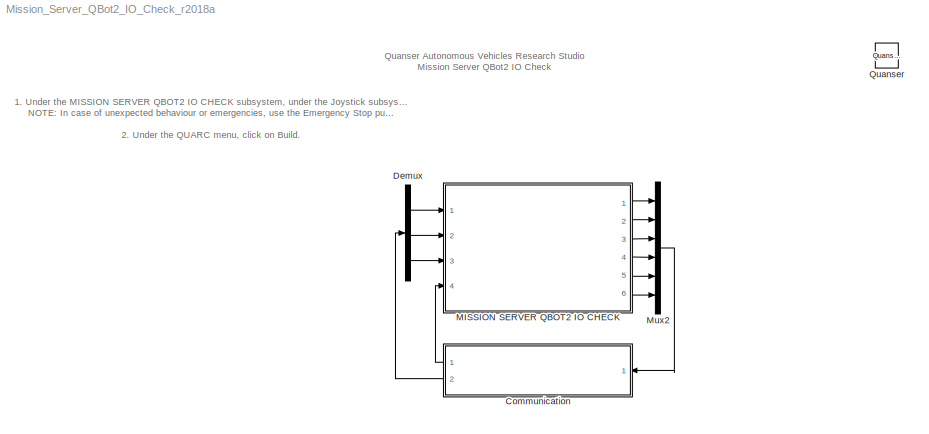
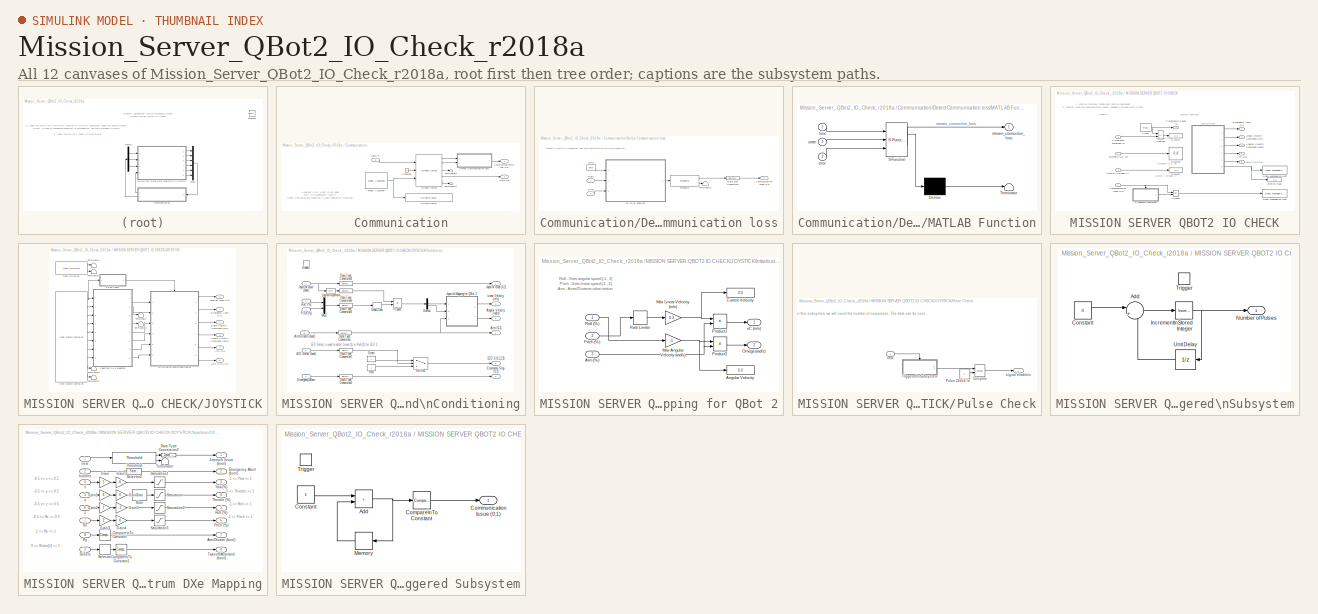
[diagram: thumbnail index - all 12 canvases of the model, root first then tree order]
MODEL Mission_Server_QBot2_IO_Check_r2018a
KIND model
BLOCK [SubSystem] Communication
  Ports = [1, 2]
  RequestExecContextInheritance = off
  SID = 4439
BLOCK [Outport] Communication/Communication\nIssue (0,1)
  SID = 4441
  VectorParamsAs1DForOutWhenUnconnected = off
BLOCK [Constant] Communication/Constant
  SID = 4314
BLOCK [Inport] Communication/Data In
  SID = 4440
BLOCK [Outport] Communication/Data Out
  Port = 2
  SID = 4444
  VectorParamsAs1DForOutWhenUnconnected = off
BLOCK [SubSystem] Communication/Detect Communication loss
  Ports = [2, 1]
  RequestExecContextInheritance = off
  SID = 4446
BLOCK [Outport] Communication/Detect Communication loss/Communication Issue (0,1)
  SID = 4454
  VectorParamsAs1DForOutWhenUnconnected = off
BLOCK [DataTypeConversion] Communication/Detect Communication loss/Data Type Conversion
  RndMeth = Floor
  SID = 4450
  SaturateOnIntegerOverflow = off
BLOCK [Inport] Communication/Detect Communication loss/Error
  Port = 2
  SID = 4448
BLOCK [SubSystem] Communication/Detect Communication loss/MATLAB Function
  ErrorFcn = Stateflow.Translate.translate
  PermitHierarchicalResolution = ExplicitOnly
  Ports = [3, 1]
  RequestExecContextInheritance = off
  SFBlockType = MATLAB Function
  SID = 4451
  TreatAsAtomicUnit = on
BLOCK [Demux] Communication/Detect Communication loss/MATLAB Function/ Demux 
  Outputs = 1
  Ports = [1, 1]
  SID = 4451::38
BLOCK [S-Function] Communication/Detect Communication loss/MATLAB Function/ SFunction 
  EnableBusSupport = off
  FunctionName = sf_sfun
  PortCounts = [3 2]
  Ports = [3, 2]
  SFcnIsStateOwnerBlock = off
  SFunctionDeploymentMode = off
  SID = 4451::37
  Tag = Stateflow S-Function Mission_Server_QBot2_IO_Check_r2018a 3
BLOCK [Terminator] Communication/Detect Communication loss/MATLAB Function/ Terminator 
  SID = 4451::39
BLOCK [Inport] Communication/Detect Communication loss/MATLAB Function/error
  Port = 3
  SID = 4451::23
BLOCK [Inport] Communication/Detect Communication loss/MATLAB Function/state
  Port = 2
  SID = 4451::22
BLOCK [Outport] Communication/Detect Communication loss/MATLAB Function/stream_connection_loss
  SID = 4451::5
  VectorParamsAs1DForOutWhenUnconnected = off
BLOCK [Inport] Communication/Detect Communication loss/MATLAB Function/time
  SID = 4451::1
BLOCK [Inport] Communication/Detect Communication loss/State
  SID = 4447
BLOCK [Terminator] Communication/Detect Communication loss/Terminator2
  SID = 4452
BLOCK [Reference] Communication/Detect Communication loss/Threshold  REF=quarc_library/Discontinuities/Threshold
  Ports = [1, 2]
  RTWMemSecDataConstants = Inherit from model
  RTWMemSecDataInternal = Inherit from model
  RTWMemSecDataParameters = Inherit from model
  RTWMemSecFuncExecute = Inherit from model
  RTWMemSecFuncInitTerm = Inherit from model
  SID = 4453
  SourceBlock = quarc_library/Discontinuities/Threshold
  SourceProductName = QUARC Targets
  SourceType = Threshold
  duration = 0.1
  operator = >=
  param_src = Specify via dialog
  threshold = 0.5
BLOCK [Reference] Communication/Detect Communication loss/Time  REF=quarc_library/Sources/Time/Time
  MultiThreadCoSim = auto
  Ports = [0, 1]
  SID = 4455
  SourceBlock = quarc_library/Sources/Time/Time
  SourceProductName = QUARC Targets
  SourceType = Time
  sample_time = qc_get_step_size
  time_source = Wall clock
BLOCK [Reference] Communication/Model Argument  REF=quarc_library/Sources/Signals/Model Argument
  AttributesFormatString = (-%<argument_name>)
  MultiThreadCoSim = auto
  Ports = [0, 1]
  SID = 4322
  SourceBlock = quarc_library/Sources/Signals/Model Argument
  SourceProductName = QUARC Targets
  SourceType = Model Argument
  argument_name = URI_Host
  data_type = char
  data_type_mode = Specify via dialog
  default_value = 0
  has_value = on
  max_length = 80
  variable_size = off
BLOCK [Reference] Communication/Stream Server  REF=quarc_library/Communications/Basic/Stream Server
  MultiThreadCoSim = auto
  Ports = [3, 5]
  SID = 4331
  SourceBlock = quarc_library/Communications/Basic/Stream Server
  SourceProductName = QUARC Targets
  SourceType = Stream Server
  active = off
  apply_uri_to_all_configs = off
  byte_order = little endian (Intel - LSB first)
  data_type = Inherited via back propagation
  default_value = zeros(1,5)
  implementation = Use blocking I/O in a separate thread
  max_dimensions = -1
  optimization = Minimum latency
  receive_buffer_size = 1460
  receive_dimensions = off
  receive_fifo_size = 1
  receive_options = Receive most recent data
  receive_priority = 0
  sample_time = qc_get_step_size
  send_buffer_size = 1460
  send_dimensions = off
  send_fifo_size = 1
  send_options = Send most recent data
  send_priority = 0
  type_expr = BusObject
  uri = tcpip://localhost:18666
  uri_source = External input port
BLOCK [Reference] Communication/String Display   REF=quarc_library/Strings/String Display
  MultiThreadCoSim = auto
  Ports = [1]
  SID = 4332
  SourceBlock = quarc_library/Strings/String Display
  SourceProductName = QUARC Targets
  SourceType = String Display
  alignment = center
  display_mode = Single line
  sample_time = -1
  use_new = off
BLOCK [Terminator] Communication/Terminator1
  SID = 4334
BLOCK [Terminator] Communication/Terminator2
  SID = 4335
BLOCK [Demux] Demux
  Outputs = [3 1 1 ]
  Ports = [1, 3]
  SID = 4456
BLOCK [SubSystem] MISSION SERVER QBOT2 IO CHECK
  Ports = [4, 6]
  RequestExecContextInheritance = off
  SID = 4500
BLOCK [Outport] MISSION SERVER QBOT2 IO CHECK/Angular Velocity Command (rad//s)
  Port = 3
  SID = 4512
  VectorParamsAs1DForOutWhenUnconnected = off
BLOCK [Outport] MISSION SERVER QBOT2 IO CHECK/Arm (0,1)
  Port = 4
  SID = 4513
  VectorParamsAs1DForOutWhenUnconnected = off
BLOCK [Inport] MISSION SERVER QBOT2 IO CHECK/Battery Voltage (V)
  Port = 2
  SID = 4503
BLOCK [Inport] MISSION SERVER QBOT2 IO CHECK/Bumpers (0,1) [3]
  SID = 4502
BLOCK [Inport] MISSION SERVER QBOT2 IO CHECK/Communication Issue (0,1)
  Port = 4
  SID = 4504
BLOCK [Display] MISSION SERVER QBOT2 IO CHECK/Display1
  Decimation = 1
  Ports = [1]
  SID = 3830
BLOCK [Display] MISSION SERVER QBOT2 IO CHECK/Display2
  Decimation = 1
  Ports = [1]
  SID = 3831
BLOCK [Display] MISSION SERVER QBOT2 IO CHECK/Display3
  Decimation = 1
  Ports = [1]
  SID = 4386
BLOCK [Outport] MISSION SERVER QBOT2 IO CHECK/Emergency Abort (0,1)
  SID = 4505
  VectorParamsAs1DForOutWhenUnconnected = off
BLOCK [SubSystem] MISSION SERVER QBOT2 IO CHECK/JOYSTICK
  Ports = [0, 6]
  RequestExecContextInheritance = off
  SID = 3641
BLOCK [Outport] MISSION SERVER QBOT2 IO CHECK/JOYSTICK/Angular Velocity Command (rad//s)
  Port = 3
  SID = 4496
  VectorParamsAs1DForOutWhenUnconnected = off
BLOCK [Outport] MISSION SERVER QBOT2 IO CHECK/JOYSTICK/Arm (0,1)
  Port = 4
  SID = 4497
  VectorParamsAs1DForOutWhenUnconnected = off
BLOCK [Outport] MISSION SERVER QBOT2 IO CHECK/JOYSTICK/Emergency Abort (0,1)
  SID = 4378
  VectorParamsAs1DForOutWhenUnconnected = off
BLOCK [Reference] MISSION SERVER QBOT2 IO CHECK/JOYSTICK/Host Game Controller  REF=quarc_library/Devices/Peripherals/Host/Host Game Controller
  MultiThreadCoSim = auto
  Ports = [0, 10]
  SID = 3674
  SourceBlock = quarc_library/Devices/Peripherals/Host/Host Game Controller
  SourceProductName = QUARC Targets
  SourceType = Host Game Controller
  auto_center = off
  buffer_size = 20
  controller = 1
  deadzone = []
  debug_mode = off
  enabled = on
  object_name = Host-1
  sample_time = qc_get_step_size
  saturation = []
BLOCK [Reference] MISSION SERVER QBOT2 IO CHECK/JOYSTICK/Host Initialize  REF=quarc_library/Devices/Peripherals/Host/Host Initialize
  MultiThreadCoSim = auto
  Ports = [0, 2]
  SID = 3675
  SourceBlock = quarc_library/Devices/Peripherals/Host/Host Initialize
  SourceProductName = QUARC Targets
  SourceType = Host Initialize
  active = on
  apply_uri_to_all_configs = on
  object_name = Host-1
  receive_buffer_size = 1000
  run_client = on
  sample_time = qc_get_step_size
  send_buffer_size = 1000
  thread_priority = 0
  uri = tcpip://localhost:18001
  uri_source = Use external mode communications
  use_window = off
  window_position = []
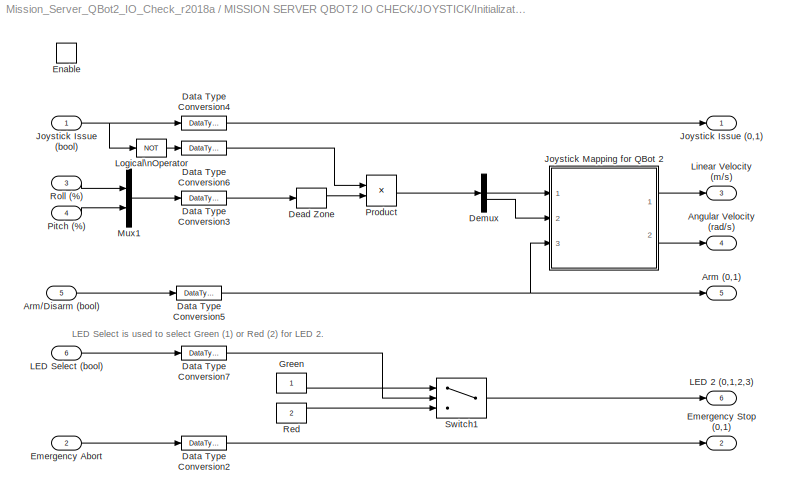
BLOCK [SubSystem] MISSION SERVER QBOT2 IO CHECK/JOYSTICK/Initialization and\nConditioning
  Ports = [6, 6, 1]
  RequestExecContextInheritance = off
  SID = 3648
  TreatAsAtomicUnit = on
BLOCK [Outport] MISSION SERVER QBOT2 IO CHECK/JOYSTICK/Initialization and\nConditioning/Angular Velocity (rad//s)
  InitialOutput = 0
  Port = 4
  SID = 4491
  VectorParamsAs1DForOutWhenUnconnected = off
BLOCK [Outport] MISSION SERVER QBOT2 IO CHECK/JOYSTICK/Initialization and\nConditioning/Arm (0,1) 
  InitialOutput = 0
  Port = 5
  SID = 4492
  VectorParamsAs1DForOutWhenUnconnected = off
BLOCK [Inport] MISSION SERVER QBOT2 IO CHECK/JOYSTICK/Initialization and\nConditioning/Arm//Disarm (bool)
  Port = 5
  SID = 3655
BLOCK [DataTypeConversion] MISSION SERVER QBOT2 IO CHECK/JOYSTICK/Initialization and\nConditioning/Data Type Conversion2
  RndMeth = Floor
  SID = 3658
  SaturateOnIntegerOverflow = off
BLOCK [DataTypeConversion] MISSION SERVER QBOT2 IO CHECK/JOYSTICK/Initialization and\nConditioning/Data Type Conversion3
  RndMeth = Floor
  SID = 3659
  SaturateOnIntegerOverflow = off
BLOCK [DataTypeConversion] MISSION SERVER QBOT2 IO CHECK/JOYSTICK/Initialization and\nConditioning/Data Type Conversion4
  RndMeth = Floor
  SID = 3660
  SaturateOnIntegerOverflow = off
BLOCK [DataTypeConversion] MISSION SERVER QBOT2 IO CHECK/JOYSTICK/Initialization and\nConditioning/Data Type Conversion5
  RndMeth = Floor
  SID = 3661
  SaturateOnIntegerOverflow = off
BLOCK [DataTypeConversion] MISSION SERVER QBOT2 IO CHECK/JOYSTICK/Initialization and\nConditioning/Data Type Conversion6
  RndMeth = Floor
  SID = 3662
  SaturateOnIntegerOverflow = off
BLOCK [DataTypeConversion] MISSION SERVER QBOT2 IO CHECK/JOYSTICK/Initialization and\nConditioning/Data Type Conversion7
  RndMeth = Floor
  SID = 3728
  SaturateOnIntegerOverflow = off
BLOCK [DeadZone] MISSION SERVER QBOT2 IO CHECK/JOYSTICK/Initialization and\nConditioning/Dead Zone
  LowerValue = -0.01
  SID = 3663
  UpperValue = 0.01
BLOCK [Demux] MISSION SERVER QBOT2 IO CHECK/JOYSTICK/Initialization and\nConditioning/Demux
  Outputs = 2
  Ports = [1, 2]
  SID = 4360
BLOCK [Inport] MISSION SERVER QBOT2 IO CHECK/JOYSTICK/Initialization and\nConditioning/Emergency Abort
  Port = 2
  SID = 3650
BLOCK [Outport] MISSION SERVER QBOT2 IO CHECK/JOYSTICK/Initialization and\nConditioning/Emergency Stop  (0,1) 
  InitialOutput = 0
  Port = 2
  SID = 4489
  VectorParamsAs1DForOutWhenUnconnected = off
BLOCK [EnablePort] MISSION SERVER QBOT2 IO CHECK/JOYSTICK/Initialization and\nConditioning/Enable
  Ports = []
  SID = 3656
  StatesWhenEnabling = reset
BLOCK [Constant] MISSION SERVER QBOT2 IO CHECK/JOYSTICK/Initialization and\nConditioning/Green
  SID = 4516
BLOCK [Outport] MISSION SERVER QBOT2 IO CHECK/JOYSTICK/Initialization and\nConditioning/Joystick Issue (0,1)
  InitialOutput = 0
  SID = 3672
  VectorParamsAs1DForOutWhenUnconnected = off
BLOCK [Inport] MISSION SERVER QBOT2 IO CHECK/JOYSTICK/Initialization and\nConditioning/Joystick Issue (bool)
  SID = 3649
BLOCK [SubSystem] MISSION SERVER QBOT2 IO CHECK/JOYSTICK/Initialization and\nConditioning/Joystick Mapping for QBot 2
  Ports = [3, 2]
  RequestExecContextInheritance = off
  SID = 4345
BLOCK [Display] MISSION SERVER QBOT2 IO CHECK/JOYSTICK/Initialization and\nConditioning/Joystick Mapping for QBot 2/Angular Velocity
  Decimation = 1
  Ports = [1]
  SID = 4349
BLOCK [Inport] MISSION SERVER QBOT2 IO CHECK/JOYSTICK/Initialization and\nConditioning/Joystick Mapping for QBot 2/Arm (%)
  Port = 3
  SID = 4348
BLOCK [Display] MISSION SERVER QBOT2 IO CHECK/JOYSTICK/Initialization and\nConditioning/Joystick Mapping for QBot 2/Current Velocity
  Decimation = 1
  Ports = [1]
  SID = 4350
BLOCK [Gain] MISSION SERVER QBOT2 IO CHECK/JOYSTICK/Initialization and\nConditioning/Joystick Mapping for QBot 2/Max Angular Velocity (rad//s)
  Gain = -1
  SID = 4352
BLOCK [Gain] MISSION SERVER QBOT2 IO CHECK/JOYSTICK/Initialization and\nConditioning/Joystick Mapping for QBot 2/Max Linear Velocity (m//s)
  Gain = 0.3
  SID = 4351
BLOCK [Outport] MISSION SERVER QBOT2 IO CHECK/JOYSTICK/Initialization and\nConditioning/Joystick Mapping for QBot 2/Omega (rad//s)
  Port = 2
  SID = 4357
  VectorParamsAs1DForOutWhenUnconnected = off
BLOCK [Inport] MISSION SERVER QBOT2 IO CHECK/JOYSTICK/Initialization and\nConditioning/Joystick Mapping for QBot 2/Pitch (%)
  Port = 2
  SID = 4347
BLOCK [Product] MISSION SERVER QBOT2 IO CHECK/JOYSTICK/Initialization and\nConditioning/Joystick Mapping for QBot 2/Product1
  Ports = [2, 1]
  SID = 4353
BLOCK [Product] MISSION SERVER QBOT2 IO CHECK/JOYSTICK/Initialization and\nConditioning/Joystick Mapping for QBot 2/Product2
  Ports = [2, 1]
  SID = 4354
BLOCK [RateLimiter] MISSION SERVER QBOT2 IO CHECK/JOYSTICK/Initialization and\nConditioning/Joystick Mapping for QBot 2/Rate Limiter
  FallingSlewLimit = -2
  RisingSlewLimit = 2
  SID = 4355
  SampleTimeMode = inherited
BLOCK [Inport] MISSION SERVER QBOT2 IO CHECK/JOYSTICK/Initialization and\nConditioning/Joystick Mapping for QBot 2/Roll (%)
  SID = 4346
BLOCK [Outport] MISSION SERVER QBOT2 IO CHECK/JOYSTICK/Initialization and\nConditioning/Joystick Mapping for QBot 2/vC (m//s)
  SID = 4356
  VectorParamsAs1DForOutWhenUnconnected = off
BLOCK [Outport] MISSION SERVER QBOT2 IO CHECK/JOYSTICK/Initialization and\nConditioning/LED 2 (0,1,2,3)
  InitialOutput = 0
  Port = 6
  SID = 4494
  VectorParamsAs1DForOutWhenUnconnected = off
BLOCK [Inport] MISSION SERVER QBOT2 IO CHECK/JOYSTICK/Initialization and\nConditioning/LED Select (bool)
  Port = 6
  SID = 3727
BLOCK [Outport] MISSION SERVER QBOT2 IO CHECK/JOYSTICK/Initialization and\nConditioning/Linear Velocity (m//s)
  InitialOutput = 0
  Port = 3
  SID = 4490
  VectorParamsAs1DForOutWhenUnconnected = off
BLOCK [Logic] MISSION SERVER QBOT2 IO CHECK/JOYSTICK/Initialization and\nConditioning/Logical\nOperator
  AllPortsSameDT = off
  Operator = NOT
  OutDataTypeStr = boolean
  Ports = [1, 1]
  SID = 3664
BLOCK [Mux] MISSION SERVER QBOT2 IO CHECK/JOYSTICK/Initialization and\nConditioning/Mux1
  DisplayOption = bar
  Inputs = 2
  Ports = [2, 1]
  SID = 3666
BLOCK [Inport] MISSION SERVER QBOT2 IO CHECK/JOYSTICK/Initialization and\nConditioning/Pitch (%)
  Port = 4
  SID = 3654
BLOCK [Product] MISSION SERVER QBOT2 IO CHECK/JOYSTICK/Initialization and\nConditioning/Product
  Ports = [2, 1]
  SID = 3667
BLOCK [Constant] MISSION SERVER QBOT2 IO CHECK/JOYSTICK/Initialization and\nConditioning/Red
  SID = 4517
  Value = 2
BLOCK [Inport] MISSION SERVER QBOT2 IO CHECK/JOYSTICK/Initialization and\nConditioning/Roll (%)
  Port = 3
  SID = 3653
BLOCK [Switch] MISSION SERVER QBOT2 IO CHECK/JOYSTICK/Initialization and\nConditioning/Switch1
  Criteria = u2 > Threshold
  InputSameDT = off
  SID = 4438
  SaturateOnIntegerOverflow = off
  Threshold = 0.5
BLOCK [Outport] MISSION SERVER QBOT2 IO CHECK/JOYSTICK/Joystick Issue (0,1)
  Port = 6
  SID = 3722
  VectorParamsAs1DForOutWhenUnconnected = off
BLOCK [Outport] MISSION SERVER QBOT2 IO CHECK/JOYSTICK/LED 2 (0,1,2,3)
  Port = 5
  SID = 4499
  VectorParamsAs1DForOutWhenUnconnected = off
BLOCK [Outport] MISSION SERVER QBOT2 IO CHECK/JOYSTICK/Linear Velocity Command (m//s)
  Port = 2
  SID = 4495
  VectorParamsAs1DForOutWhenUnconnected = off
BLOCK [SubSystem] MISSION SERVER QBOT2 IO CHECK/JOYSTICK/Pulse Check
  Ports = [1, 1]
  RequestExecContextInheritance = off
  SID = 4656
BLOCK [Reference] MISSION SERVER QBOT2 IO CHECK/JOYSTICK/Pulse Check/Compare  REF=quarc_library/Logic Operations/Compare
  MultiThreadCoSim = auto
  Ports = [2, 1]
  SID = 4658
  SourceBlock = quarc_library/Logic Operations/Compare
  SourceProductName = QUARC Targets
  SourceType = Compare
  operator = >
  output_data_type = boolean
BLOCK [Constant] MISSION SERVER QBOT2 IO CHECK/JOYSTICK/Pulse Check/Pulse Check \n
  SID = 4659
  Value = 2
BLOCK [SubSystem] MISSION SERVER QBOT2 IO CHECK/JOYSTICK/Pulse Check/Triggered\nSubsystem
  Ports = [0, 1, 0, 1]
  RequestExecContextInheritance = off
  SID = 4660
  TreatAsAtomicUnit = on
BLOCK [Sum] MISSION SERVER QBOT2 IO CHECK/JOYSTICK/Pulse Check/Triggered\nSubsystem/Add
  Inputs = |++
  Ports = [2, 1]
  SID = 4662
BLOCK [Constant] MISSION SERVER QBOT2 IO CHECK/JOYSTICK/Pulse Check/Triggered\nSubsystem/Constant
  SID = 4663
  Value = 0
BLOCK [Reference] MISSION SERVER QBOT2 IO CHECK/JOYSTICK/Pulse Check/Triggered\nSubsystem/Increment\nStored Integer  REF=simulink/Additional Math\n& Discrete/Additional Math:\nIncrement - Decrement/Increment\nStored Integer
  Ports = [1, 1]
  RTWMemSecDataConstants = Inherit from model
  RTWMemSecDataInternal = Inherit from model
  RTWMemSecDataParameters = Inherit from model
  RTWMemSecFuncExecute = Inherit from model
  RTWMemSecFuncInitTerm = Inherit from model
  SID = 4664
  SourceBlock = simulink/Additional Math\n& Discrete/Additional Math:\nIncrement - Decrement/Increment\nStored Integer
  SourceProductBaseCode = SL
  SourceType = Stored Integer Value Increment
BLOCK [Outport] MISSION SERVER QBOT2 IO CHECK/JOYSTICK/Pulse Check/Triggered\nSubsystem/Number of Pulses
  SID = 4666
  VectorParamsAs1DForOutWhenUnconnected = off
BLOCK [TriggerPort] MISSION SERVER QBOT2 IO CHECK/JOYSTICK/Pulse Check/Triggered\nSubsystem/Trigger
  Ports = []
  SID = 4661
  StatesWhenEnabling = held
  VariantControl = Variant
BLOCK [UnitDelay] MISSION SERVER QBOT2 IO CHECK/JOYSTICK/Pulse Check/Triggered\nSubsystem/Unit Delay
  HasFrameUpgradeWarning = on
  SID = 4665
  SampleTime = -1
BLOCK [Inport] MISSION SERVER QBOT2 IO CHECK/JOYSTICK/Pulse Check/new
  SID = 4657
BLOCK [Outport] MISSION SERVER QBOT2 IO CHECK/JOYSTICK/Pulse Check/signal enable\n
  SID = 4667
  VectorParamsAs1DForOutWhenUnconnected = off
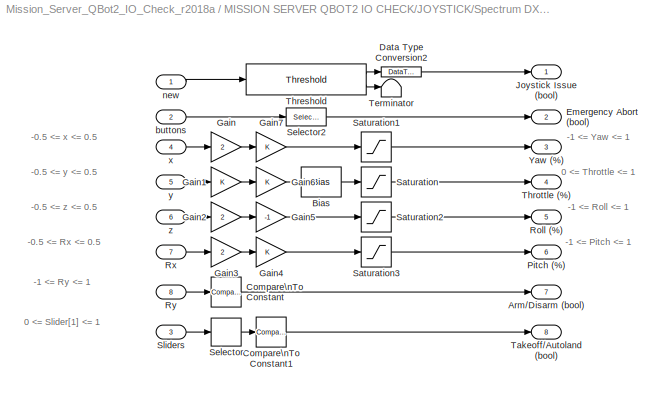
BLOCK [SubSystem] MISSION SERVER QBOT2 IO CHECK/JOYSTICK/Spectrum DXe Mapping
  Ports = [8, 8]
  RequestExecContextInheritance = off
  SID = 4594
BLOCK [Outport] MISSION SERVER QBOT2 IO CHECK/JOYSTICK/Spectrum DXe Mapping/Arm//Disarm (bool) 
  Port = 7
  SID = 4629
  VectorParamsAs1DForOutWhenUnconnected = off
BLOCK [Bias] MISSION SERVER QBOT2 IO CHECK/JOYSTICK/Spectrum DXe Mapping/Bias
  Bias = 0.5
  SID = 4603
  SaturateOnIntegerOverflow = off
BLOCK [Reference] MISSION SERVER QBOT2 IO CHECK/JOYSTICK/Spectrum DXe Mapping/Compare\nTo Constant  REF=simulink/Logic and Bit\nOperations/Compare\nTo Constant
  OutDataTypeStr = boolean
  Ports = [1, 1]
  RTWMemSecDataConstants = Inherit from model
  RTWMemSecDataInternal = Inherit from model
  RTWMemSecDataParameters = Inherit from model
  RTWMemSecFuncExecute = Inherit from model
  RTWMemSecFuncInitTerm = Inherit from model
  SID = 4604
  SourceBlock = simulink/Logic and Bit\nOperations/Compare\nTo Constant
  SourceProductBaseCode = SL
  SourceType = Compare To Constant
  ZeroCross = on
  const = 0
  relop = <=
BLOCK [Reference] MISSION SERVER QBOT2 IO CHECK/JOYSTICK/Spectrum DXe Mapping/Compare\nTo Constant1  REF=simulink/Logic and Bit\nOperations/Compare\nTo Constant
  OutDataTypeStr = boolean
  Ports = [1, 1]
  RTWMemSecDataConstants = Inherit from model
  RTWMemSecDataInternal = Inherit from model
  RTWMemSecDataParameters = Inherit from model
  RTWMemSecFuncExecute = Inherit from model
  RTWMemSecFuncInitTerm = Inherit from model
  SID = 4605
  SourceBlock = simulink/Logic and Bit\nOperations/Compare\nTo Constant
  SourceProductBaseCode = SL
  SourceType = Compare To Constant
  ZeroCross = on
  const = 0.5
  relop = <=
BLOCK [DataTypeConversion] MISSION SERVER QBOT2 IO CHECK/JOYSTICK/Spectrum DXe Mapping/Data Type Conversion2
  RndMeth = Floor
  SID = 4606
  SaturateOnIntegerOverflow = off
BLOCK [Outport] MISSION SERVER QBOT2 IO CHECK/JOYSTICK/Spectrum DXe Mapping/Emergency Abort (bool)
  Port = 2
  SID = 4624
  VectorParamsAs1DForOutWhenUnconnected = off
BLOCK [Gain] MISSION SERVER QBOT2 IO CHECK/JOYSTICK/Spectrum DXe Mapping/Gain
  Gain = 2
  SID = 4607
BLOCK [Gain] MISSION SERVER QBOT2 IO CHECK/JOYSTICK/Spectrum DXe Mapping/Gain1
  SID = 4608
BLOCK [Gain] MISSION SERVER QBOT2 IO CHECK/JOYSTICK/Spectrum DXe Mapping/Gain2
  Gain = 2
  SID = 4609
BLOCK [Gain] MISSION SERVER QBOT2 IO CHECK/JOYSTICK/Spectrum DXe Mapping/Gain3
  Gain = 2
  SID = 4610
BLOCK [Gain] MISSION SERVER QBOT2 IO CHECK/JOYSTICK/Spectrum DXe Mapping/Gain4
  SID = 4611
BLOCK [Gain] MISSION SERVER QBOT2 IO CHECK/JOYSTICK/Spectrum DXe Mapping/Gain5
  Gain = -1
  SID = 4612
BLOCK [Gain] MISSION SERVER QBOT2 IO CHECK/JOYSTICK/Spectrum DXe Mapping/Gain6
  SID = 4613
BLOCK [Gain] MISSION SERVER QBOT2 IO CHECK/JOYSTICK/Spectrum DXe Mapping/Gain7
  SID = 4614
BLOCK [Outport] MISSION SERVER QBOT2 IO CHECK/JOYSTICK/Spectrum DXe Mapping/Joystick Issue (bool)
  SID = 4623
  VectorParamsAs1DForOutWhenUnconnected = off
BLOCK [Outport] MISSION SERVER QBOT2 IO CHECK/JOYSTICK/Spectrum DXe Mapping/Pitch (%)
  Port = 6
  SID = 4628
  VectorParamsAs1DForOutWhenUnconnected = off
BLOCK [Outport] MISSION SERVER QBOT2 IO CHECK/JOYSTICK/Spectrum DXe Mapping/Roll (%)
  Port = 5
  SID = 4627
  VectorParamsAs1DForOutWhenUnconnected = off
BLOCK [Inport] MISSION SERVER QBOT2 IO CHECK/JOYSTICK/Spectrum DXe Mapping/Rx
  Port = 7
  SID = 4601
BLOCK [Inport] MISSION SERVER QBOT2 IO CHECK/JOYSTICK/Spectrum DXe Mapping/Ry
  Port = 8
  SID = 4602
BLOCK [Saturate] MISSION SERVER QBOT2 IO CHECK/JOYSTICK/Spectrum DXe Mapping/Saturation
  LowerLimit = 0
  SID = 4615
  UpperLimit = 1
BLOCK [Saturate] MISSION SERVER QBOT2 IO CHECK/JOYSTICK/Spectrum DXe Mapping/Saturation1
  LowerLimit = -1
  SID = 4616
  UpperLimit = 1
BLOCK [Saturate] MISSION SERVER QBOT2 IO CHECK/JOYSTICK/Spectrum DXe Mapping/Saturation2
  LowerLimit = -1
  SID = 4617
  UpperLimit = 1
BLOCK [Saturate] MISSION SERVER QBOT2 IO CHECK/JOYSTICK/Spectrum DXe Mapping/Saturation3
  LowerLimit = -1
  SID = 4618
  UpperLimit = 1
BLOCK [Selector] MISSION SERVER QBOT2 IO CHECK/JOYSTICK/Spectrum DXe Mapping/Selector
  IndexOptions = Index vector (dialog)
  Indices = [1]
  InputPortWidth = 2
  OutputSizes = 1
  Ports = [1, 1]
  SID = 4619
BLOCK [Selector] MISSION SERVER QBOT2 IO CHECK/JOYSTICK/Spectrum DXe Mapping/Selector2
  IndexOptions = Index vector (dialog)
  Indices = [1]
  InputPortWidth = 32
  OutputSizes = 1
  Ports = [1, 1]
  SID = 4620
BLOCK [Inport] MISSION SERVER QBOT2 IO CHECK/JOYSTICK/Spectrum DXe Mapping/Sliders
  Port = 3
  SID = 4597
BLOCK [Outport] MISSION SERVER QBOT2 IO CHECK/JOYSTICK/Spectrum DXe Mapping/Takeoff//Autoland (bool)
  Port = 8
  SID = 4630
  VectorParamsAs1DForOutWhenUnconnected = off
BLOCK [Terminator] MISSION SERVER QBOT2 IO CHECK/JOYSTICK/Spectrum DXe Mapping/Terminator
  SID = 4621
BLOCK [Reference] MISSION SERVER QBOT2 IO CHECK/JOYSTICK/Spectrum DXe Mapping/Threshold  REF=quarc_library/Discontinuities/Threshold
  Ports = [1, 2]
  RTWMemSecDataConstants = Inherit from model
  RTWMemSecDataInternal = Inherit from model
  RTWMemSecDataParameters = Inherit from model
  RTWMemSecFuncExecute = Inherit from model
  RTWMemSecFuncInitTerm = Inherit from model
  SID = 4622
  SourceBlock = quarc_library/Discontinuities/Threshold
  SourceProductName = QUARC Targets
  SourceType = Threshold
  duration = 1
  operator = ==
  param_src = Specify via dialog
  threshold = 0
BLOCK [Outport] MISSION SERVER QBOT2 IO CHECK/JOYSTICK/Spectrum DXe Mapping/Throttle (%)
  Port = 4
  SID = 4626
  VectorParamsAs1DForOutWhenUnconnected = off
BLOCK [Outport] MISSION SERVER QBOT2 IO CHECK/JOYSTICK/Spectrum DXe Mapping/Yaw (%)
  Port = 3
  SID = 4625
  VectorParamsAs1DForOutWhenUnconnected = off
BLOCK [Inport] MISSION SERVER QBOT2 IO CHECK/JOYSTICK/Spectrum DXe Mapping/buttons
  Port = 2
  SID = 4596
BLOCK [Inport] MISSION SERVER QBOT2 IO CHECK/JOYSTICK/Spectrum DXe Mapping/new
  SID = 4595
BLOCK [Inport] MISSION SERVER QBOT2 IO CHECK/JOYSTICK/Spectrum DXe Mapping/x
  Port = 4
  SID = 4598
BLOCK [Inport] MISSION SERVER QBOT2 IO CHECK/JOYSTICK/Spectrum DXe Mapping/y
  Port = 5
  SID = 4599
BLOCK [Inport] MISSION SERVER QBOT2 IO CHECK/JOYSTICK/Spectrum DXe Mapping/z
  Port = 6
  SID = 4600
BLOCK [Terminator] MISSION SERVER QBOT2 IO CHECK/JOYSTICK/Terminator
  SID = 4641
BLOCK [Terminator] MISSION SERVER QBOT2 IO CHECK/JOYSTICK/Terminator1
  SID = 3717
BLOCK [Terminator] MISSION SERVER QBOT2 IO CHECK/JOYSTICK/Terminator2
  SID = 3718
BLOCK [Terminator] MISSION SERVER QBOT2 IO CHECK/JOYSTICK/Terminator3
  SID = 3719
BLOCK [Terminator] MISSION SERVER QBOT2 IO CHECK/JOYSTICK/Terminator4
  SID = 3720
BLOCK [Terminator] MISSION SERVER QBOT2 IO CHECK/JOYSTICK/Terminator5
  SID = 4642
BLOCK [Display] MISSION SERVER QBOT2 IO CHECK/Joystick Issue
  Decimation = 1
  Ports = [1]
  SID = 3736
BLOCK [Outport] MISSION SERVER QBOT2 IO CHECK/LED 2 (0,1,2,3)
  Port = 5
  SID = 4515
  VectorParamsAs1DForOutWhenUnconnected = off
BLOCK [Outport] MISSION SERVER QBOT2 IO CHECK/Linear Velocity Command (m//s)
  Port = 2
  SID = 4511
  VectorParamsAs1DForOutWhenUnconnected = off
BLOCK [Product] MISSION SERVER QBOT2 IO CHECK/Product
  Ports = [2, 1]
  SID = 4643
BLOCK [Reference] MISSION SERVER QBOT2 IO CHECK/Show Message on Host  REF=quarc_library/Sinks/Error Handling/Show Message on Host
  AttributesFormatString = \"%<message>\"
  MultiThreadCoSim = auto
  Ports = [1]
  SID = 4329
  SourceBlock = quarc_library/Sinks/Error Handling/Show Message on Host
  SourceProductName = QUARC Targets
  SourceType = Host Show Message
  message = Mission Server: Communication Issue with QBot 2
  message_icon = Warning
  message_type = Fixed error message
BLOCK [Reference] MISSION SERVER QBOT2 IO CHECK/Show Message on Host   REF=quarc_library/Sinks/Error Handling/Show Message on Host
  AttributesFormatString = \"%<message>\"
  MultiThreadCoSim = auto
  Ports = [1]
  SID = 4330
  SourceBlock = quarc_library/Sinks/Error Handling/Show Message on Host
  SourceProductName = QUARC Targets
  SourceType = Host Show Message
  message = Mission Server: Joystick Disconnected
  message_icon = Warning
  message_type = Fixed error message
BLOCK [Sum] MISSION SERVER QBOT2 IO CHECK/Subtract
  IconShape = rectangular
  Inputs = +-
  Ports = [2, 1]
  SID = 4652
BLOCK [Reference] MISSION SERVER QBOT2 IO CHECK/Time  REF=quarc_library/Sources/Time/Time
  MultiThreadCoSim = auto
  Ports = [0, 1]
  SID = 4651
  SourceBlock = quarc_library/Sources/Time/Time
  SourceProductName = QUARC Targets
  SourceType = Time
  sample_time = qc_get_step_size
  time_source = Wall clock
BLOCK [Inport] MISSION SERVER QBOT2 IO CHECK/Timestamp Received (s)
  Port = 3
  SID = 4501
BLOCK [Outport] MISSION SERVER QBOT2 IO CHECK/Timestamp to send (s)
  Port = 6
  SID = 4653
  VectorParamsAs1DForOutWhenUnconnected = off
BLOCK [SubSystem] MISSION SERVER QBOT2 IO CHECK/Triggered Subsystem
  Ports = [0, 1, 0, 1]
  RequestExecContextInheritance = off
  SID = 4644
  TreatAsAtomicUnit = on
BLOCK [Sum] MISSION SERVER QBOT2 IO CHECK/Triggered Subsystem/Add
  IconShape = rectangular
  Ports = [2, 1]
  SID = 4646
BLOCK [Outport] MISSION SERVER QBOT2 IO CHECK/Triggered Subsystem/Communication Issue (0,1)
  InitialOutput = 0
  SID = 4650
  VectorParamsAs1DForOutWhenUnconnected = off
BLOCK [Reference] MISSION SERVER QBOT2 IO CHECK/Triggered Subsystem/Compare\nTo Constant  REF=simulink/Logic and Bit\nOperations/Compare\nTo Constant
  OutDataTypeStr = boolean
  Ports = [1, 1]
  RTWMemSecDataConstants = Inherit from model
  RTWMemSecDataInternal = Inherit from model
  RTWMemSecDataParameters = Inherit from model
  RTWMemSecFuncExecute = Inherit from model
  RTWMemSecFuncInitTerm = Inherit from model
  SID = 4647
  SourceBlock = simulink/Logic and Bit\nOperations/Compare\nTo Constant
  SourceProductBaseCode = SL
  SourceType = Compare To Constant
  ZeroCross = on
  const = 1
  relop = >=
BLOCK [Constant] MISSION SERVER QBOT2 IO CHECK/Triggered Subsystem/Constant
  SID = 4648
BLOCK [Memory] MISSION SERVER QBOT2 IO CHECK/Triggered Subsystem/Memory
  InheritSampleTime = on
  SID = 4649
BLOCK [TriggerPort] MISSION SERVER QBOT2 IO CHECK/Triggered Subsystem/Trigger
  Ports = []
  SID = 4645
  StatesWhenEnabling = held
  TriggerType = falling
  VariantControl = Variant
BLOCK [Mux] Mux2
  DisplayOption = bar
  Inputs = 6
  Ports = [6, 1]
  SID = 4359
BLOCK [Reference] Quanser  REF=quarc_library/Logos/Quanser
  Ports = []
  RTWMemSecDataConstants = Inherit from model
  RTWMemSecDataInternal = Inherit from model
  RTWMemSecDataParameters = Inherit from model
  RTWMemSecFuncExecute = Inherit from model
  RTWMemSecFuncInitTerm = Inherit from model
  SID = 4391
  SourceBlock = quarc_library/Logos/Quanser
  SourceProductName = QUARC Targets
  SourceType = Powered by Quanser
ANNOTATION (root): \n \n 1. Under the MISSION SERVER QBOT2 IO CHECK subsystem, under the Joystick subsystem, ensure that the Host Game Controller block's Controller Number parameter is set to SPEKTRUM RECEIVER. NOTE : In case of unexpected behaviour or emergencies, use the Emergency Stop push button on the Spektrum Joysick to stop the QBot 2 model. \n 2. Under the QUARC menu, click on Build . \n 3. Under the QUARC m...<+411ch>
ANNOTATION (root): \n \n Quanser Autonomous Vehicles Research Studio Mission Server QBot2 IO Check
ANNOTATION Communication: Argument (-URI_Host) is set under\nMEX-file arguments, found in\nModel Configuration Properties > Code Generation > Interface
ANNOTATION Communication/Detect Communication loss: Checks if state is 2 (connected) and that there are no errors (error codes are negative). Otherwise issue a communication error.
ANNOTATION MISSION SERVER QBOT2 IO CHECK: 1. Joystick Interface: Reads user joystick commands \n2. Monitor: monitors communication issues, loopback time and QBot 2 Data
ANNOTATION MISSION SERVER QBOT2 IO CHECK: Battery Voltage (V)
ANNOTATION MISSION SERVER QBOT2 IO CHECK: Bumpers (0,1) [3]
ANNOTATION MISSION SERVER QBOT2 IO CHECK: Joystick Interface
ANNOTATION MISSION SERVER QBOT2 IO CHECK: Loop-back Time (s)
ANNOTATION MISSION SERVER QBOT2 IO CHECK: Monitor
ANNOTATION MISSION SERVER QBOT2 IO CHECK/JOYSTICK/Initialization and\nConditioning: LED Select is used to select Green (1) or Red (2) for LED 2.
ANNOTATION MISSION SERVER QBOT2 IO CHECK/JOYSTICK/Initialization and\nConditioning/Joystick Mapping for QBot 2: Roll - Sets angular speed [-1 , 1]\nPitch - Sets linear speed [-1 , 1]\nArm - Arms/Disarms robot motion
ANNOTATION MISSION SERVER QBOT2 IO CHECK/JOYSTICK/Pulse Check: For this subsystem we will count the number of new pulses. The data can be considered enabled once the count of new signals has gone beyond 2. This will enable the Initializing and conditioning subsystem.
ANNOTATION MISSION SERVER QBOT2 IO CHECK/JOYSTICK/Spectrum DXe Mapping: -0.5 <= Rx <= 0.5
ANNOTATION MISSION SERVER QBOT2 IO CHECK/JOYSTICK/Spectrum DXe Mapping: -0.5 <= x <= 0.5
ANNOTATION MISSION SERVER QBOT2 IO CHECK/JOYSTICK/Spectrum DXe Mapping: -0.5 <= y <= 0.5
ANNOTATION MISSION SERVER QBOT2 IO CHECK/JOYSTICK/Spectrum DXe Mapping: -0.5 <= z <= 0.5
ANNOTATION MISSION SERVER QBOT2 IO CHECK/JOYSTICK/Spectrum DXe Mapping: -1 <= Pitch <= 1
ANNOTATION MISSION SERVER QBOT2 IO CHECK/JOYSTICK/Spectrum DXe Mapping: -1 <= Roll <= 1
ANNOTATION MISSION SERVER QBOT2 IO CHECK/JOYSTICK/Spectrum DXe Mapping: -1 <= Ry <= 1
ANNOTATION MISSION SERVER QBOT2 IO CHECK/JOYSTICK/Spectrum DXe Mapping: -1 <= Yaw <= 1
ANNOTATION MISSION SERVER QBOT2 IO CHECK/JOYSTICK/Spectrum DXe Mapping: 0 <= Slider[1] <= 1
ANNOTATION MISSION SERVER QBOT2 IO CHECK/JOYSTICK/Spectrum DXe Mapping: 0 <= Throttle <= 1
LINE Communication/Constant:1 -> Communication/Stream Server:2
LINE Communication/Data In:1 -> Communication/Stream Server:1
LINE Communication/Detect Communication loss/Data Type Conversion:1 -> Communication/Detect Communication loss/Communication Issue (0,1):1
LINE Communication/Detect Communication loss/Error:1 -> Communication/Detect Communication loss/MATLAB Function:3
LINE Communication/Detect Communication loss/MATLAB Function/ Demux :1 -> Communication/Detect Communication loss/MATLAB Function/ Terminator :1
LINE Communication/Detect Communication loss/MATLAB Function/ SFunction :1 -> Communication/Detect Communication loss/MATLAB Function/ Demux :1
LINE Communication/Detect Communication loss/MATLAB Function/ SFunction :2 -> Communication/Detect Communication loss/MATLAB Function/stream_connection_loss:1
LINE Communication/Detect Communication loss/MATLAB Function/error:1 -> Communication/Detect Communication loss/MATLAB Function/ SFunction :3
LINE Communication/Detect Communication loss/MATLAB Function/state:1 -> Communication/Detect Communication loss/MATLAB Function/ SFunction :2
LINE Communication/Detect Communication loss/MATLAB Function/time:1 -> Communication/Detect Communication loss/MATLAB Function/ SFunction :1
LINE Communication/Detect Communication loss/MATLAB Function:1 -> Communication/Detect Communication loss/Threshold:1
LINE Communication/Detect Communication loss/State:1 -> Communication/Detect Communication loss/MATLAB Function:2
LINE Communication/Detect Communication loss/Threshold:1 -> Communication/Detect Communication loss/Data Type Conversion:1
LINE Communication/Detect Communication loss/Threshold:2 -> Communication/Detect Communication loss/Terminator2:1
LINE Communication/Detect Communication loss/Time:1 -> Communication/Detect Communication loss/MATLAB Function:1
LINE Communication/Detect Communication loss:1 -> Communication/Communication\nIssue (0,1):1
NET Communication/Model Argument:1 -> Communication/Stream Server:3, Communication/String Display :1
LINE Communication/Stream Server:1 -> Communication/Detect Communication loss:1
LINE Communication/Stream Server:2 -> Communication/Detect Communication loss:2
LINE Communication/Stream Server:3 -> Communication/Terminator2:1
LINE Communication/Stream Server:4 -> Communication/Data Out:1
LINE Communication/Stream Server:5 -> Communication/Terminator1:1
LINE Communication:1 -> MISSION SERVER QBOT2 IO CHECK:4
LINE Communication:2 -> Demux:1
LINE Demux:1 -> MISSION SERVER QBOT2 IO CHECK:1
LINE Demux:2 -> MISSION SERVER QBOT2 IO CHECK:2
LINE Demux:3 -> MISSION SERVER QBOT2 IO CHECK:3
LINE MISSION SERVER QBOT2 IO CHECK/Battery Voltage (V):1 -> MISSION SERVER QBOT2 IO CHECK/Display2:1
LINE MISSION SERVER QBOT2 IO CHECK/Bumpers (0,1) [3]:1 -> MISSION SERVER QBOT2 IO CHECK/Display3:1
NET MISSION SERVER QBOT2 IO CHECK/Communication Issue (0,1):1 -> MISSION SERVER QBOT2 IO CHECK/Product:1, MISSION SERVER QBOT2 IO CHECK/Triggered Subsystem:trigger
NET MISSION SERVER QBOT2 IO CHECK/JOYSTICK/Host Game Controller:1 -> MISSION SERVER QBOT2 IO CHECK/JOYSTICK/Pulse Check:1, MISSION SERVER QBOT2 IO CHECK/JOYSTICK/Spectrum DXe Mapping:1
LINE MISSION SERVER QBOT2 IO CHECK/JOYSTICK/Host Game Controller:10 -> MISSION SERVER QBOT2 IO CHECK/JOYSTICK/Terminator3:1
LINE MISSION SERVER QBOT2 IO CHECK/JOYSTICK/Host Game Controller:2 -> MISSION SERVER QBOT2 IO CHECK/JOYSTICK/Spectrum DXe Mapping:2
LINE MISSION SERVER QBOT2 IO CHECK/JOYSTICK/Host Game Controller:3 -> MISSION SERVER QBOT2 IO CHECK/JOYSTICK/Spectrum DXe Mapping:3
LINE MISSION SERVER QBOT2 IO CHECK/JOYSTICK/Host Game Controller:4 -> MISSION SERVER QBOT2 IO CHECK/JOYSTICK/Spectrum DXe Mapping:4
LINE MISSION SERVER QBOT2 IO CHECK/JOYSTICK/Host Game Controller:5 -> MISSION SERVER QBOT2 IO CHECK/JOYSTICK/Spectrum DXe Mapping:5
LINE MISSION SERVER QBOT2 IO CHECK/JOYSTICK/Host Game Controller:6 -> MISSION SERVER QBOT2 IO CHECK/JOYSTICK/Spectrum DXe Mapping:6
LINE MISSION SERVER QBOT2 IO CHECK/JOYSTICK/Host Game Controller:7 -> MISSION SERVER QBOT2 IO CHECK/JOYSTICK/Spectrum DXe Mapping:7
LINE MISSION SERVER QBOT2 IO CHECK/JOYSTICK/Host Game Controller:8 -> MISSION SERVER QBOT2 IO CHECK/JOYSTICK/Spectrum DXe Mapping:8
LINE MISSION SERVER QBOT2 IO CHECK/JOYSTICK/Host Game Controller:9 -> MISSION SERVER QBOT2 IO CHECK/JOYSTICK/Terminator2:1
LINE MISSION SERVER QBOT2 IO CHECK/JOYSTICK/Host Initialize:1 -> MISSION SERVER QBOT2 IO CHECK/JOYSTICK/Terminator4:1
LINE MISSION SERVER QBOT2 IO CHECK/JOYSTICK/Host Initialize:2 -> MISSION SERVER QBOT2 IO CHECK/JOYSTICK/Terminator1:1
LINE MISSION SERVER QBOT2 IO CHECK/JOYSTICK/Initialization and\nConditioning/Arm//Disarm (bool):1 -> MISSION SERVER QBOT2 IO CHECK/JOYSTICK/Initialization and\nConditioning/Data Type Conversion5:1
LINE MISSION SERVER QBOT2 IO CHECK/JOYSTICK/Initialization and\nConditioning/Data Type Conversion2:1 -> MISSION SERVER QBOT2 IO CHECK/JOYSTICK/Initialization and\nConditioning/Emergency Stop  (0,1) :1
LINE MISSION SERVER QBOT2 IO CHECK/JOYSTICK/Initialization and\nConditioning/Data Type Conversion3:1 -> MISSION SERVER QBOT2 IO CHECK/JOYSTICK/Initialization and\nConditioning/Dead Zone:1
LINE MISSION SERVER QBOT2 IO CHECK/JOYSTICK/Initialization and\nConditioning/Data Type Conversion4:1 -> MISSION SERVER QBOT2 IO CHECK/JOYSTICK/Initialization and\nConditioning/Joystick Issue (0,1):1
NET MISSION SERVER QBOT2 IO CHECK/JOYSTICK/Initialization and\nConditioning/Data Type Conversion5:1 -> MISSION SERVER QBOT2 IO CHECK/JOYSTICK/Initialization and\nConditioning/Arm (0,1) :1, MISSION SERVER QBOT2 IO CHECK/JOYSTICK/Initialization and\nConditioning/Joystick Mapping for QBot 2:3
LINE MISSION SERVER QBOT2 IO CHECK/JOYSTICK/Initialization and\nConditioning/Data Type Conversion6:1 -> MISSION SERVER QBOT2 IO CHECK/JOYSTICK/Initialization and\nConditioning/Product:1
LINE MISSION SERVER QBOT2 IO CHECK/JOYSTICK/Initialization and\nConditioning/Data Type Conversion7:1 -> MISSION SERVER QBOT2 IO CHECK/JOYSTICK/Initialization and\nConditioning/Switch1:2
LINE MISSION SERVER QBOT2 IO CHECK/JOYSTICK/Initialization and\nConditioning/Dead Zone:1 -> MISSION SERVER QBOT2 IO CHECK/JOYSTICK/Initialization and\nConditioning/Product:2
LINE MISSION SERVER QBOT2 IO CHECK/JOYSTICK/Initialization and\nConditioning/Demux:1 -> MISSION SERVER QBOT2 IO CHECK/JOYSTICK/Initialization and\nConditioning/Joystick Mapping for QBot 2:1
LINE MISSION SERVER QBOT2 IO CHECK/JOYSTICK/Initialization and\nConditioning/Demux:2 -> MISSION SERVER QBOT2 IO CHECK/JOYSTICK/Initialization and\nConditioning/Joystick Mapping for QBot 2:2
LINE MISSION SERVER QBOT2 IO CHECK/JOYSTICK/Initialization and\nConditioning/Emergency Abort:1 -> MISSION SERVER QBOT2 IO CHECK/JOYSTICK/Initialization and\nConditioning/Data Type Conversion2:1
LINE MISSION SERVER QBOT2 IO CHECK/JOYSTICK/Initialization and\nConditioning/Green:1 -> MISSION SERVER QBOT2 IO CHECK/JOYSTICK/Initialization and\nConditioning/Switch1:1
NET MISSION SERVER QBOT2 IO CHECK/JOYSTICK/Initialization and\nConditioning/Joystick Issue (bool):1 -> MISSION SERVER QBOT2 IO CHECK/JOYSTICK/Initialization and\nConditioning/Data Type Conversion4:1, MISSION SERVER QBOT2 IO CHECK/JOYSTICK/Initialization and\nConditioning/Logical\nOperator:1
NET MISSION SERVER QBOT2 IO CHECK/JOYSTICK/Initialization and\nConditioning/Joystick Mapping for QBot 2/Arm (%):1 -> MISSION SERVER QBOT2 IO CHECK/JOYSTICK/Initialization and\nConditioning/Joystick Mapping for QBot 2/Product1:2, MISSION SERVER QBOT2 IO CHECK/JOYSTICK/Initialization and\nConditioning/Joystick Mapping for QBot 2/Product2:2
NET MISSION SERVER QBOT2 IO CHECK/JOYSTICK/Initialization and\nConditioning/Joystick Mapping for QBot 2/Max Angular Velocity (rad//s):1 -> MISSION SERVER QBOT2 IO CHECK/JOYSTICK/Initialization and\nConditioning/Joystick Mapping for QBot 2/Angular Velocity:1, MISSION SERVER QBOT2 IO CHECK/JOYSTICK/Initialization and\nConditioning/Joystick Mapping for QBot 2/Product2:1
NET MISSION SERVER QBOT2 IO CHECK/JOYSTICK/Initialization and\nConditioning/Joystick Mapping for QBot 2/Max Linear Velocity (m//s):1 -> MISSION SERVER QBOT2 IO CHECK/JOYSTICK/Initialization and\nConditioning/Joystick Mapping for QBot 2/Current Velocity:1, MISSION SERVER QBOT2 IO CHECK/JOYSTICK/Initialization and\nConditioning/Joystick Mapping for QBot 2/Product1:1
LINE MISSION SERVER QBOT2 IO CHECK/JOYSTICK/Initialization and\nConditioning/Joystick Mapping for QBot 2/Pitch (%):1 -> MISSION SERVER QBOT2 IO CHECK/JOYSTICK/Initialization and\nConditioning/Joystick Mapping for QBot 2/Rate Limiter:1
LINE MISSION SERVER QBOT2 IO CHECK/JOYSTICK/Initialization and\nConditioning/Joystick Mapping for QBot 2/Product1:1 -> MISSION SERVER QBOT2 IO CHECK/JOYSTICK/Initialization and\nConditioning/Joystick Mapping for QBot 2/vC (m//s):1
LINE MISSION SERVER QBOT2 IO CHECK/JOYSTICK/Initialization and\nConditioning/Joystick Mapping for QBot 2/Product2:1 -> MISSION SERVER QBOT2 IO CHECK/JOYSTICK/Initialization and\nConditioning/Joystick Mapping for QBot 2/Omega (rad//s):1
LINE MISSION SERVER QBOT2 IO CHECK/JOYSTICK/Initialization and\nConditioning/Joystick Mapping for QBot 2/Rate Limiter:1 -> MISSION SERVER QBOT2 IO CHECK/JOYSTICK/Initialization and\nConditioning/Joystick Mapping for QBot 2/Max Linear Velocity (m//s):1
LINE MISSION SERVER QBOT2 IO CHECK/JOYSTICK/Initialization and\nConditioning/Joystick Mapping for QBot 2/Roll (%):1 -> MISSION SERVER QBOT2 IO CHECK/JOYSTICK/Initialization and\nConditioning/Joystick Mapping for QBot 2/Max Angular Velocity (rad//s):1
LINE MISSION SERVER QBOT2 IO CHECK/JOYSTICK/Initialization and\nConditioning/Joystick Mapping for QBot 2:1 -> MISSION SERVER QBOT2 IO CHECK/JOYSTICK/Initialization and\nConditioning/Linear Velocity (m//s):1
LINE MISSION SERVER QBOT2 IO CHECK/JOYSTICK/Initialization and\nConditioning/Joystick Mapping for QBot 2:2 -> MISSION SERVER QBOT2 IO CHECK/JOYSTICK/Initialization and\nConditioning/Angular Velocity (rad//s):1
LINE MISSION SERVER QBOT2 IO CHECK/JOYSTICK/Initialization and\nConditioning/LED Select (bool):1 -> MISSION SERVER QBOT2 IO CHECK/JOYSTICK/Initialization and\nConditioning/Data Type Conversion7:1
LINE MISSION SERVER QBOT2 IO CHECK/JOYSTICK/Initialization and\nConditioning/Logical\nOperator:1 -> MISSION SERVER QBOT2 IO CHECK/JOYSTICK/Initialization and\nConditioning/Data Type Conversion6:1
LINE MISSION SERVER QBOT2 IO CHECK/JOYSTICK/Initialization and\nConditioning/Mux1:1 -> MISSION SERVER QBOT2 IO CHECK/JOYSTICK/Initialization and\nConditioning/Data Type Conversion3:1
LINE MISSION SERVER QBOT2 IO CHECK/JOYSTICK/Initialization and\nConditioning/Pitch (%):1 -> MISSION SERVER QBOT2 IO CHECK/JOYSTICK/Initialization and\nConditioning/Mux1:2
LINE MISSION SERVER QBOT2 IO CHECK/JOYSTICK/Initialization and\nConditioning/Product:1 -> MISSION SERVER QBOT2 IO CHECK/JOYSTICK/Initialization and\nConditioning/Demux:1
LINE MISSION SERVER QBOT2 IO CHECK/JOYSTICK/Initialization and\nConditioning/Red:1 -> MISSION SERVER QBOT2 IO CHECK/JOYSTICK/Initialization and\nConditioning/Switch1:3
LINE MISSION SERVER QBOT2 IO CHECK/JOYSTICK/Initialization and\nConditioning/Roll (%):1 -> MISSION SERVER QBOT2 IO CHECK/JOYSTICK/Initialization and\nConditioning/Mux1:1
LINE MISSION SERVER QBOT2 IO CHECK/JOYSTICK/Initialization and\nConditioning/Switch1:1 -> MISSION SERVER QBOT2 IO CHECK/JOYSTICK/Initialization and\nConditioning/LED 2 (0,1,2,3):1
LINE MISSION SERVER QBOT2 IO CHECK/JOYSTICK/Initialization and\nConditioning:1 -> MISSION SERVER QBOT2 IO CHECK/JOYSTICK/Joystick Issue (0,1):1
LINE MISSION SERVER QBOT2 IO CHECK/JOYSTICK/Initialization and\nConditioning:2 -> MISSION SERVER QBOT2 IO CHECK/JOYSTICK/Emergency Abort (0,1):1
LINE MISSION SERVER QBOT2 IO CHECK/JOYSTICK/Initialization and\nConditioning:3 -> MISSION SERVER QBOT2 IO CHECK/JOYSTICK/Linear Velocity Command (m//s):1
LINE MISSION SERVER QBOT2 IO CHECK/JOYSTICK/Initialization and\nConditioning:4 -> MISSION SERVER QBOT2 IO CHECK/JOYSTICK/Angular Velocity Command (rad//s):1
LINE MISSION SERVER QBOT2 IO CHECK/JOYSTICK/Initialization and\nConditioning:5 -> MISSION SERVER QBOT2 IO CHECK/JOYSTICK/Arm (0,1):1
LINE MISSION SERVER QBOT2 IO CHECK/JOYSTICK/Initialization and\nConditioning:6 -> MISSION SERVER QBOT2 IO CHECK/JOYSTICK/LED 2 (0,1,2,3):1
LINE MISSION SERVER QBOT2 IO CHECK/JOYSTICK/Pulse Check/Compare:1 -> MISSION SERVER QBOT2 IO CHECK/JOYSTICK/Pulse Check/signal enable\n:1
LINE MISSION SERVER QBOT2 IO CHECK/JOYSTICK/Pulse Check/Pulse Check \n:1 -> MISSION SERVER QBOT2 IO CHECK/JOYSTICK/Pulse Check/Compare:2
LINE MISSION SERVER QBOT2 IO CHECK/JOYSTICK/Pulse Check/Triggered\nSubsystem/Add:1 -> MISSION SERVER QBOT2 IO CHECK/JOYSTICK/Pulse Check/Triggered\nSubsystem/Increment\nStored Integer:1
LINE MISSION SERVER QBOT2 IO CHECK/JOYSTICK/Pulse Check/Triggered\nSubsystem/Constant:1 -> MISSION SERVER QBOT2 IO CHECK/JOYSTICK/Pulse Check/Triggered\nSubsystem/Add:1
NET MISSION SERVER QBOT2 IO CHECK/JOYSTICK/Pulse Check/Triggered\nSubsystem/Increment\nStored Integer:1 -> MISSION SERVER QBOT2 IO CHECK/JOYSTICK/Pulse Check/Triggered\nSubsystem/Number of Pulses:1, MISSION SERVER QBOT2 IO CHECK/JOYSTICK/Pulse Check/Triggered\nSubsystem/Unit Delay:1
LINE MISSION SERVER QBOT2 IO CHECK/JOYSTICK/Pulse Check/Triggered\nSubsystem/Unit Delay:1 -> MISSION SERVER QBOT2 IO CHECK/JOYSTICK/Pulse Check/Triggered\nSubsystem/Add:2
LINE MISSION SERVER QBOT2 IO CHECK/JOYSTICK/Pulse Check/Triggered\nSubsystem:1 -> MISSION SERVER QBOT2 IO CHECK/JOYSTICK/Pulse Check/Compare:1
LINE MISSION SERVER QBOT2 IO CHECK/JOYSTICK/Pulse Check/new:1 -> MISSION SERVER QBOT2 IO CHECK/JOYSTICK/Pulse Check/Triggered\nSubsystem:trigger
LINE MISSION SERVER QBOT2 IO CHECK/JOYSTICK/Pulse Check:1 -> MISSION SERVER QBOT2 IO CHECK/JOYSTICK/Initialization and\nConditioning:enable
LINE MISSION SERVER QBOT2 IO CHECK/JOYSTICK/Spectrum DXe Mapping/Bias:1 -> MISSION SERVER QBOT2 IO CHECK/JOYSTICK/Spectrum DXe Mapping/Saturation:1
LINE MISSION SERVER QBOT2 IO CHECK/JOYSTICK/Spectrum DXe Mapping/Compare\nTo Constant1:1 -> MISSION SERVER QBOT2 IO CHECK/JOYSTICK/Spectrum DXe Mapping/Takeoff//Autoland (bool):1
LINE MISSION SERVER QBOT2 IO CHECK/JOYSTICK/Spectrum DXe Mapping/Compare\nTo Constant:1 -> MISSION SERVER QBOT2 IO CHECK/JOYSTICK/Spectrum DXe Mapping/Arm//Disarm (bool) :1
LINE MISSION SERVER QBOT2 IO CHECK/JOYSTICK/Spectrum DXe Mapping/Data Type Conversion2:1 -> MISSION SERVER QBOT2 IO CHECK/JOYSTICK/Spectrum DXe Mapping/Joystick Issue (bool):1
LINE MISSION SERVER QBOT2 IO CHECK/JOYSTICK/Spectrum DXe Mapping/Gain1:1 -> MISSION SERVER QBOT2 IO CHECK/JOYSTICK/Spectrum DXe Mapping/Gain6:1
LINE MISSION SERVER QBOT2 IO CHECK/JOYSTICK/Spectrum DXe Mapping/Gain2:1 -> MISSION SERVER QBOT2 IO CHECK/JOYSTICK/Spectrum DXe Mapping/Gain5:1
LINE MISSION SERVER QBOT2 IO CHECK/JOYSTICK/Spectrum DXe Mapping/Gain3:1 -> MISSION SERVER QBOT2 IO CHECK/JOYSTICK/Spectrum DXe Mapping/Gain4:1
LINE MISSION SERVER QBOT2 IO CHECK/JOYSTICK/Spectrum DXe Mapping/Gain4:1 -> MISSION SERVER QBOT2 IO CHECK/JOYSTICK/Spectrum DXe Mapping/Saturation3:1
LINE MISSION SERVER QBOT2 IO CHECK/JOYSTICK/Spectrum DXe Mapping/Gain5:1 -> MISSION SERVER QBOT2 IO CHECK/JOYSTICK/Spectrum DXe Mapping/Saturation2:1
LINE MISSION SERVER QBOT2 IO CHECK/JOYSTICK/Spectrum DXe Mapping/Gain6:1 -> MISSION SERVER QBOT2 IO CHECK/JOYSTICK/Spectrum DXe Mapping/Bias:1
LINE MISSION SERVER QBOT2 IO CHECK/JOYSTICK/Spectrum DXe Mapping/Gain7:1 -> MISSION SERVER QBOT2 IO CHECK/JOYSTICK/Spectrum DXe Mapping/Saturation1:1
LINE MISSION SERVER QBOT2 IO CHECK/JOYSTICK/Spectrum DXe Mapping/Gain:1 -> MISSION SERVER QBOT2 IO CHECK/JOYSTICK/Spectrum DXe Mapping/Gain7:1
LINE MISSION SERVER QBOT2 IO CHECK/JOYSTICK/Spectrum DXe Mapping/Rx:1 -> MISSION SERVER QBOT2 IO CHECK/JOYSTICK/Spectrum DXe Mapping/Gain3:1
LINE MISSION SERVER QBOT2 IO CHECK/JOYSTICK/Spectrum DXe Mapping/Ry:1 -> MISSION SERVER QBOT2 IO CHECK/JOYSTICK/Spectrum DXe Mapping/Compare\nTo Constant:1
LINE MISSION SERVER QBOT2 IO CHECK/JOYSTICK/Spectrum DXe Mapping/Saturation1:1 -> MISSION SERVER QBOT2 IO CHECK/JOYSTICK/Spectrum DXe Mapping/Yaw (%):1
LINE MISSION SERVER QBOT2 IO CHECK/JOYSTICK/Spectrum DXe Mapping/Saturation2:1 -> MISSION SERVER QBOT2 IO CHECK/JOYSTICK/Spectrum DXe Mapping/Roll (%):1
LINE MISSION SERVER QBOT2 IO CHECK/JOYSTICK/Spectrum DXe Mapping/Saturation3:1 -> MISSION SERVER QBOT2 IO CHECK/JOYSTICK/Spectrum DXe Mapping/Pitch (%):1
LINE MISSION SERVER QBOT2 IO CHECK/JOYSTICK/Spectrum DXe Mapping/Saturation:1 -> MISSION SERVER QBOT2 IO CHECK/JOYSTICK/Spectrum DXe Mapping/Throttle (%):1
LINE MISSION SERVER QBOT2 IO CHECK/JOYSTICK/Spectrum DXe Mapping/Selector2:1 -> MISSION SERVER QBOT2 IO CHECK/JOYSTICK/Spectrum DXe Mapping/Emergency Abort (bool):1
LINE MISSION SERVER QBOT2 IO CHECK/JOYSTICK/Spectrum DXe Mapping/Selector:1 -> MISSION SERVER QBOT2 IO CHECK/JOYSTICK/Spectrum DXe Mapping/Compare\nTo Constant1:1
LINE MISSION SERVER QBOT2 IO CHECK/JOYSTICK/Spectrum DXe Mapping/Sliders:1 -> MISSION SERVER QBOT2 IO CHECK/JOYSTICK/Spectrum DXe Mapping/Selector:1
LINE MISSION SERVER QBOT2 IO CHECK/JOYSTICK/Spectrum DXe Mapping/Threshold:1 -> MISSION SERVER QBOT2 IO CHECK/JOYSTICK/Spectrum DXe Mapping/Data Type Conversion2:1
LINE MISSION SERVER QBOT2 IO CHECK/JOYSTICK/Spectrum DXe Mapping/Threshold:2 -> MISSION SERVER QBOT2 IO CHECK/JOYSTICK/Spectrum DXe Mapping/Terminator:1
LINE MISSION SERVER QBOT2 IO CHECK/JOYSTICK/Spectrum DXe Mapping/buttons:1 -> MISSION SERVER QBOT2 IO CHECK/JOYSTICK/Spectrum DXe Mapping/Selector2:1
LINE MISSION SERVER QBOT2 IO CHECK/JOYSTICK/Spectrum DXe Mapping/new:1 -> MISSION SERVER QBOT2 IO CHECK/JOYSTICK/Spectrum DXe Mapping/Threshold:1
LINE MISSION SERVER QBOT2 IO CHECK/JOYSTICK/Spectrum DXe Mapping/x:1 -> MISSION SERVER QBOT2 IO CHECK/JOYSTICK/Spectrum DXe Mapping/Gain:1
LINE MISSION SERVER QBOT2 IO CHECK/JOYSTICK/Spectrum DXe Mapping/y:1 -> MISSION SERVER QBOT2 IO CHECK/JOYSTICK/Spectrum DXe Mapping/Gain1:1
LINE MISSION SERVER QBOT2 IO CHECK/JOYSTICK/Spectrum DXe Mapping/z:1 -> MISSION SERVER QBOT2 IO CHECK/JOYSTICK/Spectrum DXe Mapping/Gain2:1
LINE MISSION SERVER QBOT2 IO CHECK/JOYSTICK/Spectrum DXe Mapping:1 -> MISSION SERVER QBOT2 IO CHECK/JOYSTICK/Initialization and\nConditioning:1
LINE MISSION SERVER QBOT2 IO CHECK/JOYSTICK/Spectrum DXe Mapping:2 -> MISSION SERVER QBOT2 IO CHECK/JOYSTICK/Initialization and\nConditioning:2
LINE MISSION SERVER QBOT2 IO CHECK/JOYSTICK/Spectrum DXe Mapping:3 -> MISSION SERVER QBOT2 IO CHECK/JOYSTICK/Terminator:1
LINE MISSION SERVER QBOT2 IO CHECK/JOYSTICK/Spectrum DXe Mapping:4 -> MISSION SERVER QBOT2 IO CHECK/JOYSTICK/Terminator5:1
LINE MISSION SERVER QBOT2 IO CHECK/JOYSTICK/Spectrum DXe Mapping:5 -> MISSION SERVER QBOT2 IO CHECK/JOYSTICK/Initialization and\nConditioning:3
LINE MISSION SERVER QBOT2 IO CHECK/JOYSTICK/Spectrum DXe Mapping:6 -> MISSION SERVER QBOT2 IO CHECK/JOYSTICK/Initialization and\nConditioning:4
LINE MISSION SERVER QBOT2 IO CHECK/JOYSTICK/Spectrum DXe Mapping:7 -> MISSION SERVER QBOT2 IO CHECK/JOYSTICK/Initialization and\nConditioning:5
LINE MISSION SERVER QBOT2 IO CHECK/JOYSTICK/Spectrum DXe Mapping:8 -> MISSION SERVER QBOT2 IO CHECK/JOYSTICK/Initialization and\nConditioning:6
LINE MISSION SERVER QBOT2 IO CHECK/JOYSTICK:1 -> MISSION SERVER QBOT2 IO CHECK/Emergency Abort (0,1):1
LINE MISSION SERVER QBOT2 IO CHECK/JOYSTICK:2 -> MISSION SERVER QBOT2 IO CHECK/Linear Velocity Command (m//s):1
LINE MISSION SERVER QBOT2 IO CHECK/JOYSTICK:3 -> MISSION SERVER QBOT2 IO CHECK/Angular Velocity Command (rad//s):1
LINE MISSION SERVER QBOT2 IO CHECK/JOYSTICK:4 -> MISSION SERVER QBOT2 IO CHECK/Arm (0,1):1
LINE MISSION SERVER QBOT2 IO CHECK/JOYSTICK:5 -> MISSION SERVER QBOT2 IO CHECK/LED 2 (0,1,2,3):1
NET MISSION SERVER QBOT2 IO CHECK/JOYSTICK:6 -> MISSION SERVER QBOT2 IO CHECK/Joystick Issue:1, MISSION SERVER QBOT2 IO CHECK/Show Message on Host :1
LINE MISSION SERVER QBOT2 IO CHECK/Product:1 -> MISSION SERVER QBOT2 IO CHECK/Show Message on Host:1
LINE MISSION SERVER QBOT2 IO CHECK/Subtract:1 -> MISSION SERVER QBOT2 IO CHECK/Display1:1
NET MISSION SERVER QBOT2 IO CHECK/Time:1 -> MISSION SERVER QBOT2 IO CHECK/Subtract:1, MISSION SERVER QBOT2 IO CHECK/Timestamp to send (s):1
LINE MISSION SERVER QBOT2 IO CHECK/Timestamp Received (s):1 -> MISSION SERVER QBOT2 IO CHECK/Subtract:2
NET MISSION SERVER QBOT2 IO CHECK/Triggered Subsystem/Add:1 -> MISSION SERVER QBOT2 IO CHECK/Triggered Subsystem/Compare\nTo Constant:1, MISSION SERVER QBOT2 IO CHECK/Triggered Subsystem/Memory:1
LINE MISSION SERVER QBOT2 IO CHECK/Triggered Subsystem/Compare\nTo Constant:1 -> MISSION SERVER QBOT2 IO CHECK/Triggered Subsystem/Communication Issue (0,1):1
LINE MISSION SERVER QBOT2 IO CHECK/Triggered Subsystem/Constant:1 -> MISSION SERVER QBOT2 IO CHECK/Triggered Subsystem/Add:1
LINE MISSION SERVER QBOT2 IO CHECK/Triggered Subsystem/Memory:1 -> MISSION SERVER QBOT2 IO CHECK/Triggered Subsystem/Add:2
LINE MISSION SERVER QBOT2 IO CHECK/Triggered Subsystem:1 -> MISSION SERVER QBOT2 IO CHECK/Product:2
LINE MISSION SERVER QBOT2 IO CHECK:1 -> Mux2:1
LINE MISSION SERVER QBOT2 IO CHECK:2 -> Mux2:2
LINE MISSION SERVER QBOT2 IO CHECK:3 -> Mux2:3
LINE MISSION SERVER QBOT2 IO CHECK:4 -> Mux2:4
LINE MISSION SERVER QBOT2 IO CHECK:5 -> Mux2:5
LINE MISSION SERVER QBOT2 IO CHECK:6 -> Mux2:6
LINE Mux2:1 -> Communication:1
note: NET lines group one-source signal fan-out (src -> all destinations, sorted); 1:1 wires keep LINE
CHART Communication/Detect Communication loss/MATLAB Function states=1 transitions=1
  STATE_LABEL 'eML_blk_kernel()'
